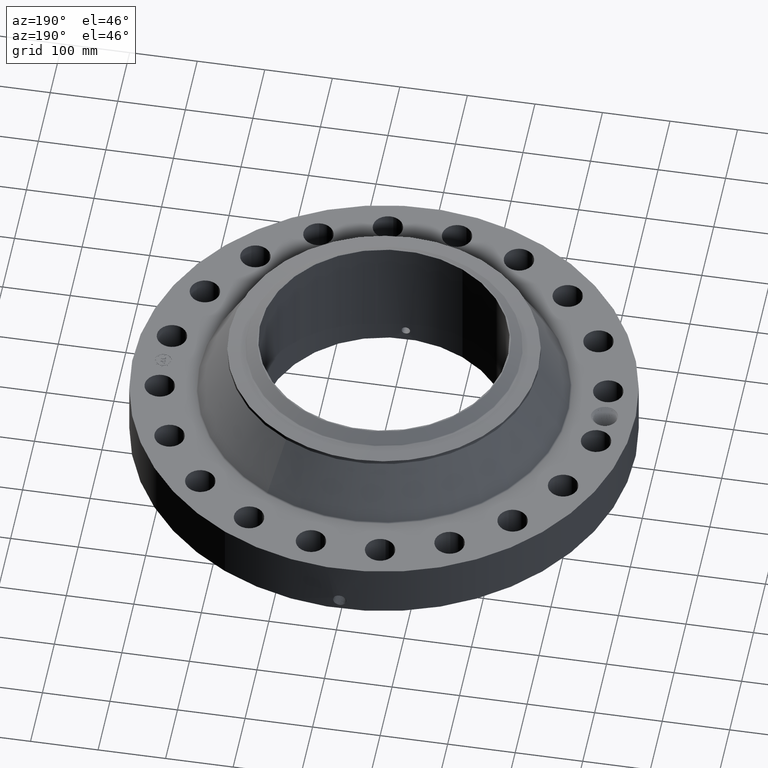
[diagram: clean part render]
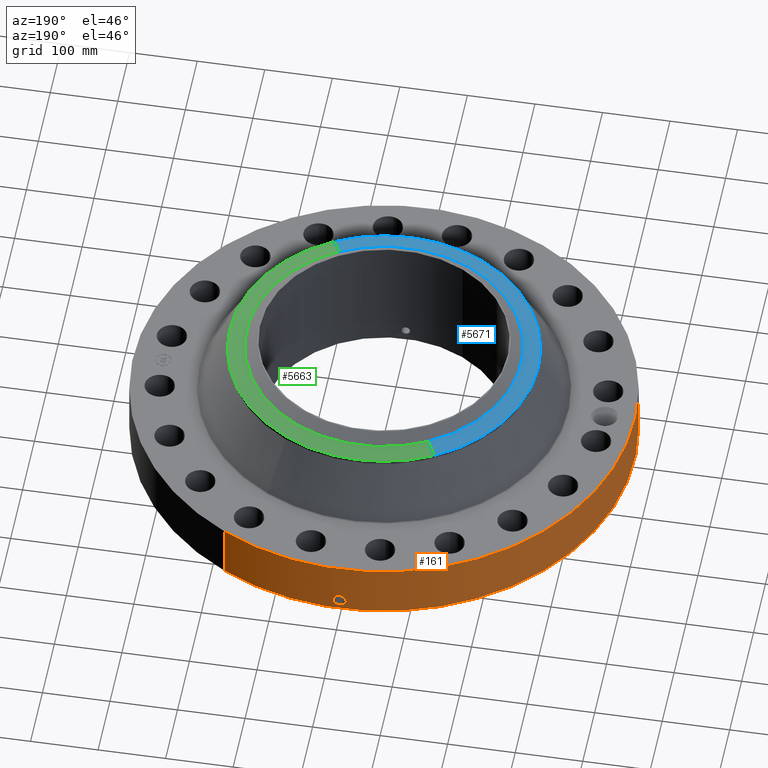
[diagram: same view with three faces highlighted in distinct colors, each labeled with its STEP entity id]
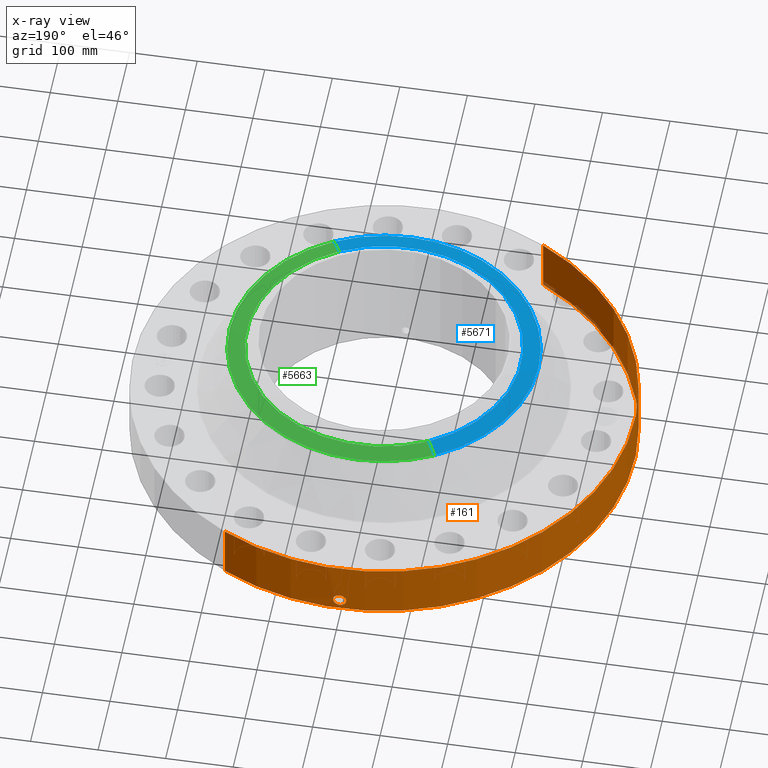
[diagram: x-ray of the same camera — body ghosted, the three highlighted faces saturated]
A machine part, auxiliary view with three faces highlighted in distinct colors.
The next image is the same camera in x-ray (body ghosted, the three faces saturated) — at least one of them is partly hidden behind the body in this view.
Their STEP definitions:

[orange] entity #161 — the highlighted cylindrical surface (partial cylindrical patch) has radius 371.475 mm, axis along (0, 0, -1).
#38=AXIS2_PLACEMENT_3D('Cylinder Axis2P3D',#35,#36,#37) ;
#42=AXIS2_PLACEMENT_3D('Circle Axis2P3D',#40,#41,$) ;
#58=AXIS2_PLACEMENT_3D('Circle Axis2P3D',#56,#57,$) ;
#35=CARTESIAN_POINT('Axis2P3D Location',(0.,0.,3.87500000002)) ;
#40=CARTESIAN_POINT('Axis2P3D Location',(0.,0.,0.250000000001)) ;
#44=CARTESIAN_POINT('Vertex',(-7.01159850211,-12.8346449677,0.250000000001)) ;
#46=CARTESIAN_POINT('Vertex',(7.01159850211,12.8346449677,0.250000000001)) ;
#49=CARTESIAN_POINT('Line Origine',(-7.01159850211,-12.8346449677,1.87500000001)) ;
#53=CARTESIAN_POINT('Vertex',(-7.01159850211,-12.8346449677,3.50000000001)) ;
#56=CARTESIAN_POINT('Axis2P3D Location',(0.,0.,3.50000000001)) ;
#60=CARTESIAN_POINT('Vertex',(7.01159850211,12.8346449677,3.50000000001)) ;
#63=CARTESIAN_POINT('Line Origine',(7.01159850211,12.8346449677,1.87500000001)) ;
#75=CARTESIAN_POINT('Control Point',(-0.000716087056336,14.6249999825,1.2941184612)) ;
#76=CARTESIAN_POINT('Control Point',(-0.0190203543549,14.6249990863,1.29408148979)) ;
#77=CARTESIAN_POINT('Control Point',(-0.0373214140006,14.6249635536,1.29262129993)) ;
#78=CARTESIAN_POINT('Control Point',(-0.0553997271149,14.6248950722,1.28975559005)) ;
#79=CARTESIAN_POINT('Vertex',(-0.000715719520912,14.6249999825,1.29411851049)) ;
#81=CARTESIAN_POINT('Vertex',(-0.0553908639206,14.6248953582,1.2897570133)) ;
#85=CARTESIAN_POINT('Control Point',(-0.055390768157,14.6248951061,1.28975646472)) ;
#86=CARTESIAN_POINT('Control Point',(-0.0957911656649,14.6247420924,1.28531622525)) ;
#87=CARTESIAN_POINT('Control Point',(-0.135547354699,14.6244176882,1.27352581246)) ;
#88=CARTESIAN_POINT('Control Point',(-0.172161792286,14.6239866425,1.25517074421)) ;
#89=CARTESIAN_POINT('Vertex',(-0.172161792286,14.6239866425,1.25517074421)) ;
#93=CARTESIAN_POINT('Control Point',(-0.0309703660208,14.6249672081,0.531185922973)) ;
#94=CARTESIAN_POINT('Control Point',(-0.0960969422906,14.6248292937,0.539430389886)) ;
#95=CARTESIAN_POINT('Control Point',(-0.159165866975,14.6243332153,0.561292352168)) ;
#96=CARTESIAN_POINT('Control Point',(-0.216216227075,14.6235308013,0.596104490574)) ;
#97=CARTESIAN_POINT('Control Point',(-0.288565953722,14.6222181912,0.664194034655)) ;
#98=CARTESIAN_POINT('Control Point',(-0.336122422854,14.6211483165,0.748637765591)) ;
#99=CARTESIAN_POINT('Control Point',(-0.349159035179,14.6208369792,0.778701495484)) ;
#100=CARTESIAN_POINT('Control Point',(-0.371366284168,14.6202900594,0.848954794036)) ;
#101=CARTESIAN_POINT('Control Point',(-0.376852428753,14.6201424354,0.9221338811)) ;
#102=CARTESIAN_POINT('Control Point',(-0.374588853453,14.6202023942,0.962952287935)) ;
#103=CARTESIAN_POINT('Control Point',(-0.356196963716,14.6206811597,1.06067819443)) ;
#104=CARTESIAN_POINT('Control Point',(-0.307903874977,14.6218049349,1.14787414723)) ;
#105=CARTESIAN_POINT('Control Point',(-0.269657992904,14.6226140449,1.19315404309)) ;
#106=CARTESIAN_POINT('Control Point',(-0.223443546272,14.6233829248,1.22946284851)) ;
#107=CARTESIAN_POINT('Control Point',(-0.172161792286,14.6239866425,1.25517074421)) ;
#108=CARTESIAN_POINT('Vertex',(-0.0309703660208,14.6249672081,0.531185922973)) ;
#112=CARTESIAN_POINT('Control Point',(-0.0309703660208,14.6249672081,0.531185922973)) ;
#113=CARTESIAN_POINT('Control Point',(-0.0206419802981,14.6249890799,0.530874083131)) ;
#114=CARTESIAN_POINT('Control Point',(-0.0103061850321,14.625000002,0.530937173466)) ;
#115=CARTESIAN_POINT('Control Point',(2.72878356085E-006,14.6250000001,0.531374667806)) ;
#116=CARTESIAN_POINT('Vertex',(2.72878354278E-006,14.6250000001,0.531374667806)) ;
#120=CARTESIAN_POINT('Control Point',(0.192662631068,14.6237309231,0.587344435508)) ;
#121=CARTESIAN_POINT('Control Point',(0.149019855508,14.6243059017,0.561999860394)) ;
#122=CARTESIAN_POINT('Control Point',(0.101119070977,14.6247640416,0.543765763928)) ;
#123=CARTESIAN_POINT('Control Point',(0.0508066580759,14.6249999906,0.533530706045)) ;
#124=CARTESIAN_POINT('Control Point',(2.72878350888E-006,14.6250000001,0.531374667806)) ;
#125=CARTESIAN_POINT('Vertex',(0.192662631068,14.6237309231,0.587344435508)) ;
#129=CARTESIAN_POINT('Control Point',(0.192662631068,14.6237309231,0.587344435508)) ;
#130=CARTESIAN_POINT('Control Point',(0.249518004829,14.6229818731,0.620361930348)) ;
#131=CARTESIAN_POINT('Control Point',(0.299618884816,14.6220454544,0.664691553056)) ;
#132=CARTESIAN_POINT('Control Point',(0.339822717687,14.6210933563,0.718791306644)) ;
#133=CARTESIAN_POINT('Control Point',(0.384112043986,14.6199652023,0.816956039878)) ;
#134=CARTESIAN_POINT('Control Point',(0.39272499803,14.6197247354,0.922244236311)) ;
#135=CARTESIAN_POINT('Control Point',(0.390620700198,14.6197828201,0.962393495455)) ;
#136=CARTESIAN_POINT('Control Point',(0.376487373517,14.6201662071,1.03728177081)) ;
#137=CARTESIAN_POINT('Control Point',(0.34439284065,14.6209577581,1.10570140674)) ;
#138=CARTESIAN_POINT('Control Point',(0.325332984848,14.6214042222,1.13612245943)) ;
#139=CARTESIAN_POINT('Control Point',(0.263575221862,14.6227270848,1.2125997108)) ;
#140=CARTESIAN_POINT('Control Point',(0.18040662308,14.6240432496,1.2656124842)) ;
#141=CARTESIAN_POINT('Control Point',(0.121571658354,14.6246891244,1.28767112202)) ;
#142=CARTESIAN_POINT('Control Point',(0.0603045697575,14.6250001067,1.2971108972)) ;
#143=CARTESIAN_POINT('Control Point',(-2.58579355531E-005,14.625,1.2941529843)) ;
#144=CARTESIAN_POINT('Vertex',(-2.58579355471E-005,14.625,1.2941529843)) ;
#148=CARTESIAN_POINT('Control Point',(-0.000715719511278,14.6249999825,1.29411851047)) ;
#149=CARTESIAN_POINT('Control Point',(-0.000370813242607,14.6249999994,1.29413607166)) ;
#150=CARTESIAN_POINT('Control Point',(-2.58579406016E-005,14.625,1.2941529843)) ;
#36=DIRECTION('Axis2P3D Direction',(0.,0.,-0.0393700787402)) ;
#37=DIRECTION('Axis2P3D XDirection',(0.0188750212049,0.0345504945626,0.)) ;
#41=DIRECTION('Axis2P3D Direction',(0.,0.,-0.0393700787402)) ;
#50=DIRECTION('Vector Direction',(0.,0.,-0.0393700787402)) ;
#57=DIRECTION('Axis2P3D Direction',(0.,0.,-0.0393700787402)) ;
#64=DIRECTION('Vector Direction',(0.,0.,-0.0393700787402)) ;
#51=VECTOR('Line Direction',#50,0.0393700787402) ;
#65=VECTOR('Line Direction',#64,0.0393700787402) ;
#69=ORIENTED_EDGE('',*,*,#48,.F.) ;
#70=ORIENTED_EDGE('',*,*,#55,.T.) ;
#71=ORIENTED_EDGE('',*,*,#62,.T.) ;
#72=ORIENTED_EDGE('',*,*,#67,.F.) ;
#153=ORIENTED_EDGE('',*,*,#83,.T.) ;
#154=ORIENTED_EDGE('',*,*,#91,.T.) ;
#155=ORIENTED_EDGE('',*,*,#110,.F.) ;
#156=ORIENTED_EDGE('',*,*,#118,.T.) ;
#157=ORIENTED_EDGE('',*,*,#127,.F.) ;
#158=ORIENTED_EDGE('',*,*,#146,.T.) ;
#159=ORIENTED_EDGE('',*,*,#151,.F.) ;
#160=FACE_BOUND('',#152,.T.) ;
#161=ADVANCED_FACE('PartBody',(#73,#160),#39,.T.) ;
#74=B_SPLINE_CURVE_WITH_KNOTS('',3,(#75,#76,#77,#78),.UNSPECIFIED.,.F.,.U.,(4,4),(34.6165608396,36.6472456872),.UNSPECIFIED.) ;
#84=B_SPLINE_CURVE_WITH_KNOTS('',3,(#85,#86,#87,#88),.UNSPECIFIED.,.F.,.U.,(4,4),(0.,4.56688149146),.UNSPECIFIED.) ;
#92=B_SPLINE_CURVE_WITH_KNOTS('',5,(#93,#94,#95,#96,#97,#98,#99,#100,#101,#102,#103,#104,#105,#106,#107),.UNSPECIFIED.,.F.,.U.,(6,3,3,3,6),(0.,11.4086038663,17.2512694625,24.6138175395,35.2743525083),.UNSPECIFIED.) ;
#111=B_SPLINE_CURVE_WITH_KNOTS('',3,(#112,#113,#114,#115),.UNSPECIFIED.,.F.,.U.,(4,4),(0.,1.07740206536),.UNSPECIFIED.) ;
#119=B_SPLINE_CURVE_WITH_KNOTS('',4,(#120,#121,#122,#123,#124),.UNSPECIFIED.,.F.,.U.,(5,5),(0.,7.07947305879),.UNSPECIFIED.) ;
#128=B_SPLINE_CURVE_WITH_KNOTS('',5,(#129,#130,#131,#132,#133,#134,#135,#136,#137,#138,#139,#140,#141,#142,#143),.UNSPECIFIED.,.F.,.U.,(6,3,3,3,6),(0.,11.5284279317,18.6014597538,25.0195394103,36.2965484844),.UNSPECIFIED.) ;
#147=B_SPLINE_CURVE_WITH_KNOTS('',2,(#148,#149,#150),.UNSPECIFIED.,.F.,.U.,(3,3),(1.02315453402,1.04894625729),.UNSPECIFIED.) ;
#43=CIRCLE('generated circle',#42,14.6250000001) ;
#59=CIRCLE('generated circle',#58,14.6250000001) ;
#39=CYLINDRICAL_SURFACE('generated cylinder',#38,14.6250000001) ;
#48=EDGE_CURVE('',#45,#47,#43,.T.) ;
#55=EDGE_CURVE('',#45,#54,#52,.F.) ;
#62=EDGE_CURVE('',#54,#61,#59,.T.) ;
#67=EDGE_CURVE('',#47,#61,#66,.F.) ;
#83=EDGE_CURVE('',#80,#82,#74,.T.) ;
#91=EDGE_CURVE('',#82,#90,#84,.T.) ;
#110=EDGE_CURVE('',#109,#90,#92,.T.) ;
#118=EDGE_CURVE('',#109,#117,#111,.T.) ;
#127=EDGE_CURVE('',#126,#117,#119,.T.) ;
#146=EDGE_CURVE('',#126,#145,#128,.T.) ;
#151=EDGE_CURVE('',#80,#145,#147,.T.) ;
#68=EDGE_LOOP('',(#69,#70,#71,#72)) ;
#152=EDGE_LOOP('',(#153,#154,#155,#156,#157,#158,#159)) ;
#73=FACE_OUTER_BOUND('',#68,.T.) ;
#52=LINE('Line',#49,#51) ;
#66=LINE('Line',#63,#65) ;
#45=VERTEX_POINT('',#44) ;
#47=VERTEX_POINT('',#46) ;
#54=VERTEX_POINT('',#53) ;
#61=VERTEX_POINT('',#60) ;
#80=VERTEX_POINT('',#79) ;
#82=VERTEX_POINT('',#81) ;
#90=VERTEX_POINT('',#89) ;
#109=VERTEX_POINT('',#108) ;
#117=VERTEX_POINT('',#116) ;
#126=VERTEX_POINT('',#125) ;
#145=VERTEX_POINT('',#144) ;

[blue] entity #5671 — the highlighted conical surface has half-angle 80 deg.
#4190=AXIS2_PLACEMENT_3D('Circle Axis2P3D',#4188,#4189,$) ;
#4203=AXIS2_PLACEMENT_3D('Circle Axis2P3D',#4201,#4202,$) ;
#5003=AXIS2_PLACEMENT_3D('Circle Axis2P3D',#5001,#5002,$) ;
#5644=AXIS2_PLACEMENT_3D('Cone Axis2P3D',#5641,#5642,#5643) ;
#4171=CARTESIAN_POINT('Vertex',(-4.31482984746,-7.89824305704,6.80429447565)) ;
#4185=CARTESIAN_POINT('Vertex',(4.31482984746,-7.89824305704,6.80429447565)) ;
#4188=CARTESIAN_POINT('Axis2P3D Location',(0.,0.,6.80429447565)) ;
#4201=CARTESIAN_POINT('Axis2P3D Location',(0.,0.,6.80429447565)) ;
#4205=CARTESIAN_POINT('Vertex',(-4.31482984746,7.89824305704,6.80429447565)) ;
#4998=CARTESIAN_POINT('Vertex',(-3.83324392624,7.01670594132,6.98141601925)) ;
#5001=CARTESIAN_POINT('Axis2P3D Location',(0.,0.,6.98141601925)) ;
#5005=CARTESIAN_POINT('Vertex',(3.83324392624,-7.01670594132,6.98141601925)) ;
#5641=CARTESIAN_POINT('Axis2P3D Location',(0.,0.,6.98141601925)) ;
#5646=CARTESIAN_POINT('Line Origine',(-4.07403688685,7.45747449918,6.89285524745)) ;
#5651=CARTESIAN_POINT('Line Origine',(4.07403688685,-7.45747449918,6.89285524745)) ;
#4189=DIRECTION('Axis2P3D Direction',(0.,0.,-0.0393700787402)) ;
#4202=DIRECTION('Axis2P3D Direction',(0.,0.,-0.0393700787402)) ;
#5002=DIRECTION('Axis2P3D Direction',(0.,0.,0.0393700787402)) ;
#5642=DIRECTION('Axis2P3D Direction',(-0.,-0.,-0.0393700787402)) ;
#5643=DIRECTION('Axis2P3D XDirection',(0.0188750212049,-0.0345504945626,0.)) ;
#5647=DIRECTION('Vector Direction',(-0.0185882672208,0.0340255949157,-0.00683654242783)) ;
#5652=DIRECTION('Vector Direction',(0.0185882672208,-0.0340255949157,-0.00683654242783)) ;
#5648=VECTOR('Line Direction',#5647,0.0393700787402) ;
#5653=VECTOR('Line Direction',#5652,0.0393700787402) ;
#5665=ORIENTED_EDGE('',*,*,#5655,.F.) ;
#5666=ORIENTED_EDGE('',*,*,#5007,.F.) ;
#5667=ORIENTED_EDGE('',*,*,#5650,.T.) ;
#5668=ORIENTED_EDGE('',*,*,#4207,.T.) ;
#5669=ORIENTED_EDGE('',*,*,#4192,.F.) ;
#5671=ADVANCED_FACE('PartBody',(#5670),#5645,.T.) ;
#4191=CIRCLE('generated circle',#4190,9.00000000004) ;
#4204=CIRCLE('generated circle',#4203,9.00000000004) ;
#5004=CIRCLE('generated circle',#5003,7.99549380996) ;
#5645=CONICAL_SURFACE('Cone',#5644,7.99549380996,1.3962634016) ;
#4192=EDGE_CURVE('',#4186,#4172,#4191,.T.) ;
#4207=EDGE_CURVE('',#4206,#4172,#4204,.F.) ;
#5007=EDGE_CURVE('',#4999,#5006,#5004,.T.) ;
#5650=EDGE_CURVE('',#4999,#4206,#5649,.T.) ;
#5655=EDGE_CURVE('',#5006,#4186,#5654,.T.) ;
#5664=EDGE_LOOP('',(#5665,#5666,#5667,#5668,#5669)) ;
#5670=FACE_OUTER_BOUND('',#5664,.T.) ;
#5649=LINE('Line',#5646,#5648) ;
#5654=LINE('Line',#5651,#5653) ;
#4172=VERTEX_POINT('',#4171) ;
#4186=VERTEX_POINT('',#4185) ;
#4206=VERTEX_POINT('',#4205) ;
#4999=VERTEX_POINT('',#4998) ;
#5006=VERTEX_POINT('',#5005) ;

[green] entity #5663 — the highlighted conical surface has half-angle 80 deg.
#4183=AXIS2_PLACEMENT_3D('Circle Axis2P3D',#4181,#4182,$) ;
#4210=AXIS2_PLACEMENT_3D('Circle Axis2P3D',#4208,#4209,$) ;
#5022=AXIS2_PLACEMENT_3D('Circle Axis2P3D',#5020,#5021,$) ;
#5644=AXIS2_PLACEMENT_3D('Cone Axis2P3D',#5641,#5642,#5643) ;
#4178=CARTESIAN_POINT('Vertex',(4.31482984746,7.89824305704,6.80429447565)) ;
#4181=CARTESIAN_POINT('Axis2P3D Location',(0.,0.,6.80429447565)) ;
#4185=CARTESIAN_POINT('Vertex',(4.31482984746,-7.89824305704,6.80429447565)) ;
#4205=CARTESIAN_POINT('Vertex',(-4.31482984746,7.89824305704,6.80429447565)) ;
#4208=CARTESIAN_POINT('Axis2P3D Location',(0.,0.,6.80429447565)) ;
#4998=CARTESIAN_POINT('Vertex',(-3.83324392624,7.01670594132,6.98141601925)) ;
#5005=CARTESIAN_POINT('Vertex',(3.83324392624,-7.01670594132,6.98141601925)) ;
#5020=CARTESIAN_POINT('Axis2P3D Location',(0.,0.,6.98141601925)) ;
#5641=CARTESIAN_POINT('Axis2P3D Location',(0.,0.,6.98141601925)) ;
#5646=CARTESIAN_POINT('Line Origine',(-4.07403688685,7.45747449918,6.89285524745)) ;
#5651=CARTESIAN_POINT('Line Origine',(4.07403688685,-7.45747449918,6.89285524745)) ;
#4182=DIRECTION('Axis2P3D Direction',(0.,0.,-0.0393700787402)) ;
#4209=DIRECTION('Axis2P3D Direction',(0.,0.,-0.0393700787402)) ;
#5021=DIRECTION('Axis2P3D Direction',(0.,0.,0.0393700787402)) ;
#5642=DIRECTION('Axis2P3D Direction',(-0.,-0.,-0.0393700787402)) ;
#5643=DIRECTION('Axis2P3D XDirection',(0.0188750212049,-0.0345504945626,0.)) ;
#5647=DIRECTION('Vector Direction',(-0.0185882672208,0.0340255949157,-0.00683654242783)) ;
#5652=DIRECTION('Vector Direction',(0.0185882672208,-0.0340255949157,-0.00683654242783)) ;
#5648=VECTOR('Line Direction',#5647,0.0393700787402) ;
#5653=VECTOR('Line Direction',#5652,0.0393700787402) ;
#5657=ORIENTED_EDGE('',*,*,#5650,.F.) ;
#5658=ORIENTED_EDGE('',*,*,#5024,.F.) ;
#5659=ORIENTED_EDGE('',*,*,#5655,.T.) ;
#5660=ORIENTED_EDGE('',*,*,#4187,.T.) ;
#5661=ORIENTED_EDGE('',*,*,#4212,.F.) ;
#5663=ADVANCED_FACE('PartBody',(#5662),#5645,.T.) ;
#4184=CIRCLE('generated circle',#4183,9.00000000004) ;
#4211=CIRCLE('generated circle',#4210,9.00000000004) ;
#5023=CIRCLE('generated circle',#5022,7.99549380996) ;
#5645=CONICAL_SURFACE('Cone',#5644,7.99549380996,1.3962634016) ;
#4187=EDGE_CURVE('',#4186,#4179,#4184,.F.) ;
#4212=EDGE_CURVE('',#4206,#4179,#4211,.T.) ;
#5024=EDGE_CURVE('',#5006,#4999,#5023,.T.) ;
#5650=EDGE_CURVE('',#4999,#4206,#5649,.T.) ;
#5655=EDGE_CURVE('',#5006,#4186,#5654,.T.) ;
#5656=EDGE_LOOP('',(#5657,#5658,#5659,#5660,#5661)) ;
#5662=FACE_OUTER_BOUND('',#5656,.T.) ;
#5649=LINE('Line',#5646,#5648) ;
#5654=LINE('Line',#5651,#5653) ;
#4179=VERTEX_POINT('',#4178) ;
#4186=VERTEX_POINT('',#4185) ;
#4206=VERTEX_POINT('',#4205) ;
#4999=VERTEX_POINT('',#4998) ;
#5006=VERTEX_POINT('',#5005) ;